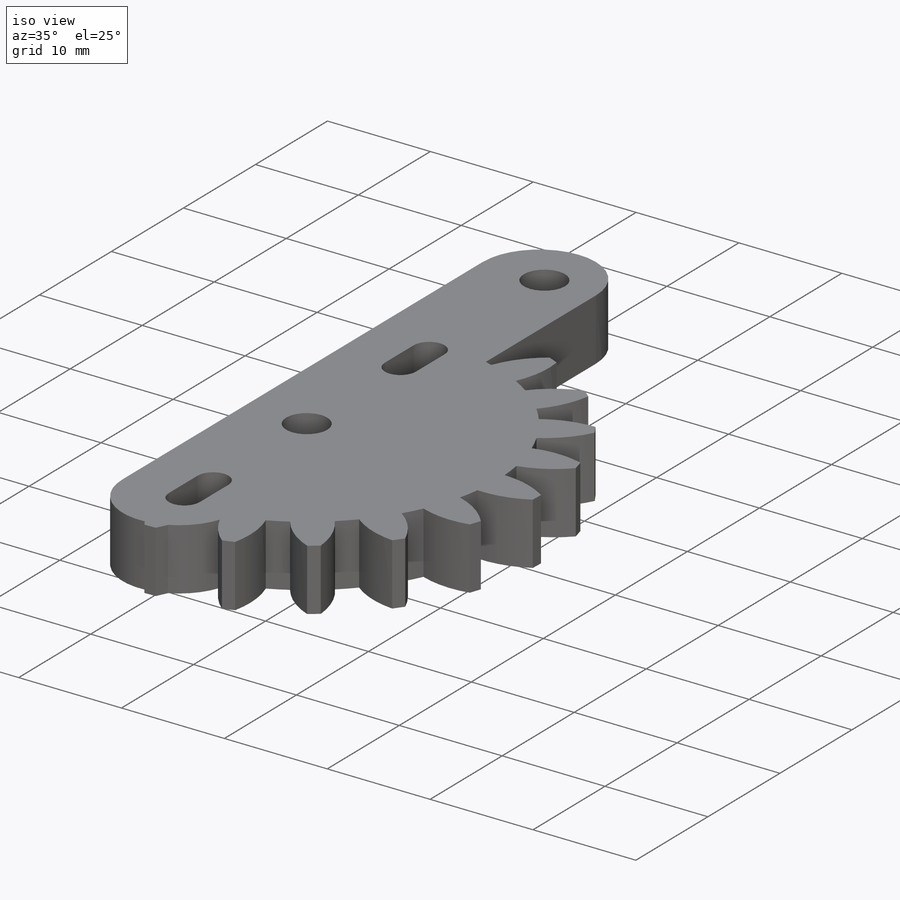
[diagram: iso view]
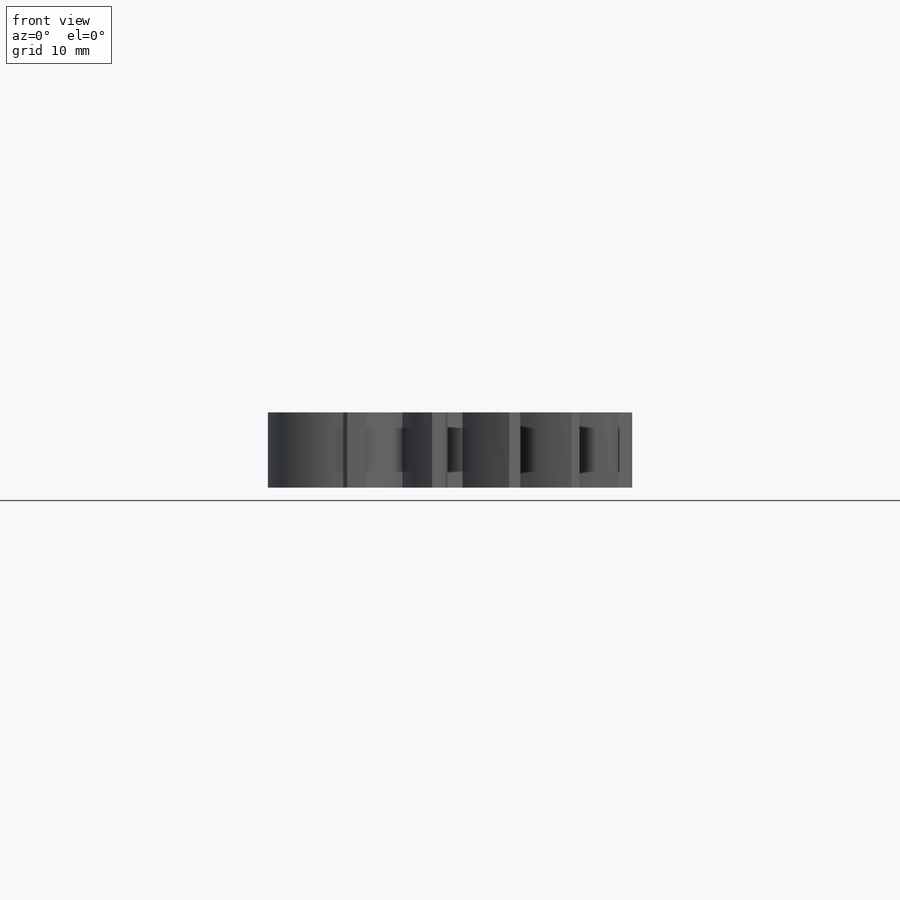
[diagram: front view]
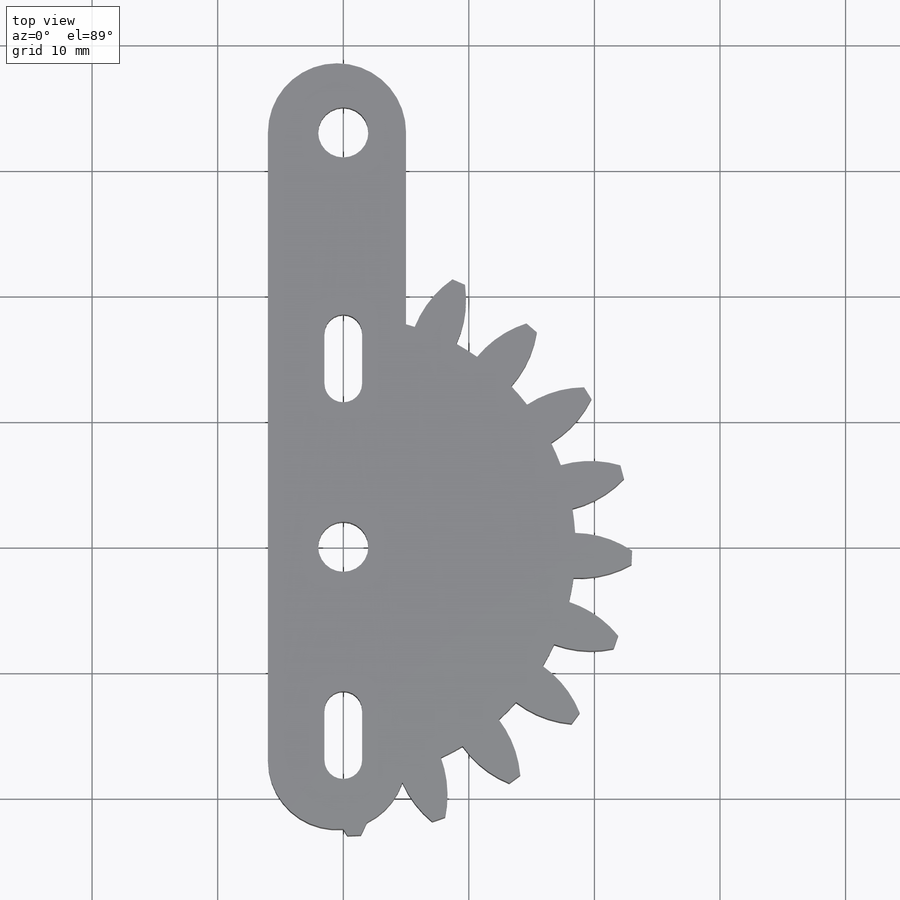
[diagram: top view]
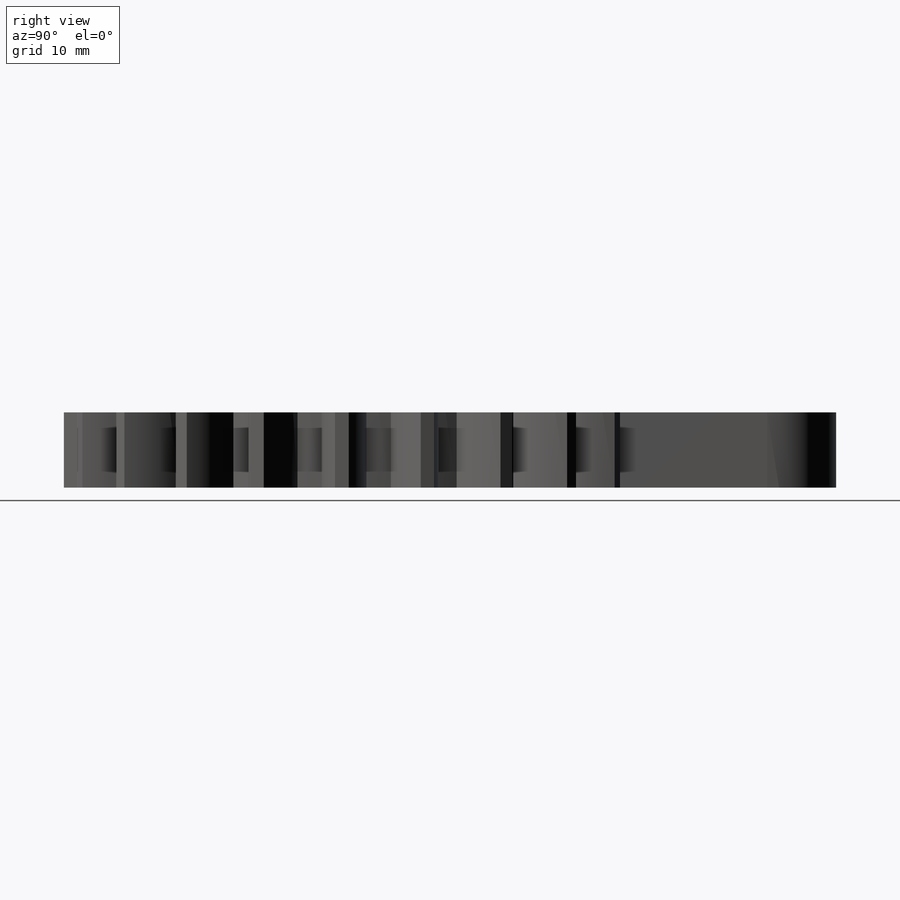
[diagram: right view]
SOLIDWORKS PART (.sldprt)
format: sldprt  version: not decoded by parser v0  size: 202,240 bytes
history: native  units: mm
features: sketch x3, extrude x2, material x1, cut_extrude x1 (+11 scaffold rows collapsed)
feature tree (18):
  scaffold x11  (default folders/planes/origin — collapsed)
  material  "Acrylic (Medium-high impact)"
  sketch  "Sketch1"  dims[c1.D1=4.0mm c1.D2=5.5mm c1.D3=5.5mm c2.D1=33.0mm c2.D3=~8.729601mm c2.D2=17.0mm c3.D3=11.0mm c3.D1=4.0mm c3.D2=4.0mm c4.D1=7.8mm c4.D2=1.0mm]
  extrude  "Boss-Extrude1"  Depth=6mm
  sketch  "Sketch4"  dims[D1=23.0mm]
  extrude  "Boss-Extrude2"  Depth=6mm
  sketch  "Sketch2"  dims[D1=33.0mm]
  cut_extrude  "Cut-Extrude1"  [1 undecoded]
decode coverage: 5 of 6 modeling features carry decoded parameters
note: ~ marks probable driven/reference dimensions
note: 1 parameter value undecoded
note: suppression state not decoded; provenance and decode notes live in map.json
